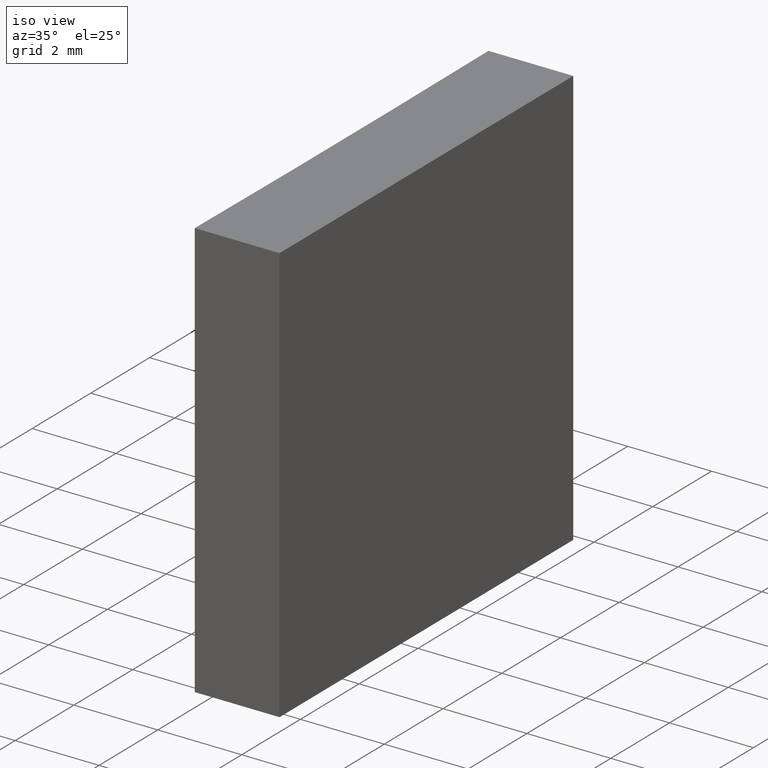
[diagram: clean part render]
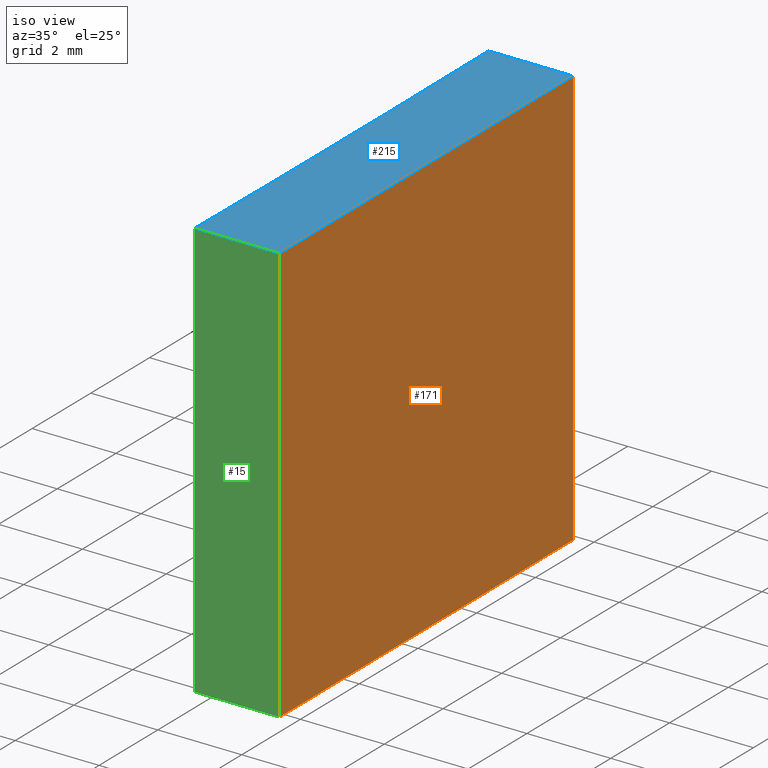
[diagram: same view with three faces highlighted in distinct colors, each labeled with its STEP entity id]
A machine part, iso view with three faces highlighted in distinct colors.
Their STEP definitions:

[orange] entity #171 — the highlighted planar face has unit normal (-1, 0, 0).
#3 = CARTESIAN_POINT ( 'NONE',  ( 433.8743084995878121, -114.5310099826064487, 0.000000000000000000 ) ) ;
#6 = LINE ( 'NONE', #158, #140 ) ;
#20 = LINE ( 'NONE', #77, #131 ) ;
#24 = PLANE ( 'NONE',  #146 ) ;
#31 = ORIENTED_EDGE ( 'NONE', *, *, #124, .F. ) ;
#32 = VECTOR ( 'NONE', #207, 1000.000000000000000 ) ;
#36 = ORIENTED_EDGE ( 'NONE', *, *, #220, .T. ) ;
#47 = CARTESIAN_POINT ( 'NONE',  ( 433.8743084995877553, -124.5310099826064203, 0.000000000000000000 ) ) ;
#57 = VERTEX_POINT ( 'NONE', #3 ) ;
#77 = CARTESIAN_POINT ( 'NONE',  ( 433.8743084995878121, -114.5310099826064487, 10.00000000000000000 ) ) ;
#78 = DIRECTION ( 'NONE',  ( 5.551115123125792957E-15, 1.000000000000000000, -0.000000000000000000 ) ) ;
#98 = EDGE_LOOP ( 'NONE', ( #169, #114, #31, #36 ) ) ;
#100 = DIRECTION ( 'NONE',  ( -5.551115123125792168E-15, -1.000000000000000000, 0.000000000000000000 ) ) ;
#101 = CARTESIAN_POINT ( 'NONE',  ( 433.8743084995878121, -114.5310099826064487, 10.00000000000000000 ) ) ;
#114 = ORIENTED_EDGE ( 'NONE', *, *, #191, .F. ) ;
#121 = DIRECTION ( 'NONE',  ( -1.000000000000000000, 5.551115123125792168E-15, 0.000000000000000000 ) ) ;
#124 = EDGE_CURVE ( 'NONE', #239, #205, #20, .T. ) ;
#126 = CARTESIAN_POINT ( 'NONE',  ( 433.8743084995877553, -124.5310099826064203, 10.00000000000000000 ) ) ;
#131 = VECTOR ( 'NONE', #78, 1000.000000000000000 ) ;
#137 = DIRECTION ( 'NONE',  ( -0.000000000000000000, -0.000000000000000000, -1.000000000000000000 ) ) ;
#139 = FACE_OUTER_BOUND ( 'NONE', #98, .T. ) ;
#140 = VECTOR ( 'NONE', #137, 1000.000000000000000 ) ;
#146 = AXIS2_PLACEMENT_3D ( 'NONE', #101, #121, #100 ) ;
#158 = CARTESIAN_POINT ( 'NONE',  ( 433.8743084995878121, -114.5310099826064487, 10.00000000000000000 ) ) ;
#160 = CARTESIAN_POINT ( 'NONE',  ( 433.8743084995877553, -124.5310099826064203, 10.00000000000000000 ) ) ;
#169 = ORIENTED_EDGE ( 'NONE', *, *, #231, .T. ) ;
#171 = ADVANCED_FACE ( 'NONE', ( #139 ), #24, .F. ) ;
#178 = LINE ( 'NONE', #160, #32 ) ;
#180 = CARTESIAN_POINT ( 'NONE',  ( 433.8743084995878121, -114.5310099826064487, 0.000000000000000000 ) ) ;
#191 = EDGE_CURVE ( 'NONE', #205, #57, #6, .T. ) ;
#199 = VECTOR ( 'NONE', #218, 1000.000000000000000 ) ;
#200 = LINE ( 'NONE', #180, #199 ) ;
#205 = VERTEX_POINT ( 'NONE', #230 ) ;
#207 = DIRECTION ( 'NONE',  ( -0.000000000000000000, -0.000000000000000000, -1.000000000000000000 ) ) ;
#218 = DIRECTION ( 'NONE',  ( 5.551115123125792957E-15, 1.000000000000000000, -0.000000000000000000 ) ) ;
#220 = EDGE_CURVE ( 'NONE', #239, #224, #178, .T. ) ;
#224 = VERTEX_POINT ( 'NONE', #47 ) ;
#230 = CARTESIAN_POINT ( 'NONE',  ( 433.8743084995878121, -114.5310099826064487, 10.00000000000000000 ) ) ;
#231 = EDGE_CURVE ( 'NONE', #224, #57, #200, .T. ) ;
#239 = VERTEX_POINT ( 'NONE', #126 ) ;

[blue] entity #215 — the highlighted planar face has unit normal (0, 0, 1).
#5 = CARTESIAN_POINT ( 'NONE',  ( 431.8543084995877166, -124.5310099826064203, 10.00000000000000000 ) ) ;
#7 = DIRECTION ( 'NONE',  ( 1.000000000000000000, 0.000000000000000000, -0.000000000000000000 ) ) ;
#19 = ORIENTED_EDGE ( 'NONE', *, *, #124, .T. ) ;
#20 = LINE ( 'NONE', #77, #131 ) ;
#22 = CARTESIAN_POINT ( 'NONE',  ( 431.8543084995877166, -114.5310099826064345, 10.00000000000000000 ) ) ;
#23 = DIRECTION ( 'NONE',  ( 0.000000000000000000, 0.000000000000000000, 1.000000000000000000 ) ) ;
#29 = AXIS2_PLACEMENT_3D ( 'NONE', #192, #23, #7 ) ;
#37 = ORIENTED_EDGE ( 'NONE', *, *, #91, .T. ) ;
#38 = DIRECTION ( 'NONE',  ( -1.000000000000000000, 6.870191984066299653E-15, -0.000000000000000000 ) ) ;
#54 = VECTOR ( 'NONE', #38, 1000.000000000000000 ) ;
#62 = EDGE_CURVE ( 'NONE', #74, #116, #120, .T. ) ;
#74 = VERTEX_POINT ( 'NONE', #22 ) ;
#77 = CARTESIAN_POINT ( 'NONE',  ( 433.8743084995878121, -114.5310099826064487, 10.00000000000000000 ) ) ;
#78 = DIRECTION ( 'NONE',  ( 5.551115123125792957E-15, 1.000000000000000000, -0.000000000000000000 ) ) ;
#80 = DIRECTION ( 'NONE',  ( 1.000000000000000000, 0.000000000000000000, 0.000000000000000000 ) ) ;
#91 = EDGE_CURVE ( 'NONE', #205, #74, #117, .T. ) ;
#96 = VECTOR ( 'NONE', #102, 1000.000000000000000 ) ;
#102 = DIRECTION ( 'NONE',  ( 1.000000000000000000, 0.000000000000000000, 0.000000000000000000 ) ) ;
#116 = VERTEX_POINT ( 'NONE', #5 ) ;
#117 = LINE ( 'NONE', #213, #54 ) ;
#120 = CIRCLE ( 'NONE', #234, 516.8000000000000682 ) ;
#122 = FACE_OUTER_BOUND ( 'NONE', #203, .T. ) ;
#124 = EDGE_CURVE ( 'NONE', #239, #205, #20, .T. ) ;
#126 = CARTESIAN_POINT ( 'NONE',  ( 433.8743084995877553, -124.5310099826064203, 10.00000000000000000 ) ) ;
#131 = VECTOR ( 'NONE', #78, 1000.000000000000000 ) ;
#153 = ORIENTED_EDGE ( 'NONE', *, *, #62, .T. ) ;
#156 = DIRECTION ( 'NONE',  ( -0.000000000000000000, -0.000000000000000000, -1.000000000000000000 ) ) ;
#159 = PLANE ( 'NONE',  #29 ) ;
#172 = CARTESIAN_POINT ( 'NONE',  ( -84.92150362787631934, -119.5310099826064345, 10.00000000000000000 ) ) ;
#175 = CARTESIAN_POINT ( 'NONE',  ( 431.8543084995877166, -124.5310099826064203, 10.00000000000000000 ) ) ;
#176 = EDGE_CURVE ( 'NONE', #116, #239, #177, .T. ) ;
#177 = LINE ( 'NONE', #175, #96 ) ;
#192 = CARTESIAN_POINT ( 'NONE',  ( -84.92150362787631934, -119.5310099826064345, 10.00000000000000000 ) ) ;
#203 = EDGE_LOOP ( 'NONE', ( #153, #204, #19, #37 ) ) ;
#204 = ORIENTED_EDGE ( 'NONE', *, *, #176, .T. ) ;
#205 = VERTEX_POINT ( 'NONE', #230 ) ;
#213 = CARTESIAN_POINT ( 'NONE',  ( 431.8543084995877166, -114.5310099826064345, 10.00000000000000000 ) ) ;
#215 = ADVANCED_FACE ( 'NONE', ( #122 ), #159, .T. ) ;
#230 = CARTESIAN_POINT ( 'NONE',  ( 433.8743084995878121, -114.5310099826064487, 10.00000000000000000 ) ) ;
#234 = AXIS2_PLACEMENT_3D ( 'NONE', #172, #156, #80 ) ;
#239 = VERTEX_POINT ( 'NONE', #126 ) ;

[green] entity #15 — the highlighted planar face has unit normal (0, 1, 0).
#1 = ORIENTED_EDGE ( 'NONE', *, *, #107, .T. ) ;
#5 = CARTESIAN_POINT ( 'NONE',  ( 431.8543084995877166, -124.5310099826064203, 10.00000000000000000 ) ) ;
#15 = ADVANCED_FACE ( 'NONE', ( #76 ), #154, .F. ) ;
#18 = ORIENTED_EDGE ( 'NONE', *, *, #176, .F. ) ;
#32 = VECTOR ( 'NONE', #207, 1000.000000000000000 ) ;
#34 = EDGE_CURVE ( 'NONE', #116, #55, #138, .T. ) ;
#35 = ORIENTED_EDGE ( 'NONE', *, *, #220, .F. ) ;
#42 = AXIS2_PLACEMENT_3D ( 'NONE', #225, #227, #79 ) ;
#47 = CARTESIAN_POINT ( 'NONE',  ( 433.8743084995877553, -124.5310099826064203, 0.000000000000000000 ) ) ;
#49 = VECTOR ( 'NONE', #174, 1000.000000000000000 ) ;
#55 = VERTEX_POINT ( 'NONE', #211 ) ;
#63 = CARTESIAN_POINT ( 'NONE',  ( 431.8543084995877166, -124.5310099826064203, 10.00000000000000000 ) ) ;
#72 = EDGE_LOOP ( 'NONE', ( #1, #35, #18, #167 ) ) ;
#76 = FACE_OUTER_BOUND ( 'NONE', #72, .T. ) ;
#79 = DIRECTION ( 'NONE',  ( 0.000000000000000000, -0.000000000000000000, 1.000000000000000000 ) ) ;
#96 = VECTOR ( 'NONE', #102, 1000.000000000000000 ) ;
#102 = DIRECTION ( 'NONE',  ( 1.000000000000000000, 0.000000000000000000, 0.000000000000000000 ) ) ;
#107 = EDGE_CURVE ( 'NONE', #55, #224, #190, .T. ) ;
#108 = VECTOR ( 'NONE', #188, 1000.000000000000000 ) ;
#116 = VERTEX_POINT ( 'NONE', #5 ) ;
#126 = CARTESIAN_POINT ( 'NONE',  ( 433.8743084995877553, -124.5310099826064203, 10.00000000000000000 ) ) ;
#138 = LINE ( 'NONE', #63, #49 ) ;
#154 = PLANE ( 'NONE',  #42 ) ;
#160 = CARTESIAN_POINT ( 'NONE',  ( 433.8743084995877553, -124.5310099826064203, 10.00000000000000000 ) ) ;
#167 = ORIENTED_EDGE ( 'NONE', *, *, #34, .T. ) ;
#174 = DIRECTION ( 'NONE',  ( -0.000000000000000000, -0.000000000000000000, -1.000000000000000000 ) ) ;
#175 = CARTESIAN_POINT ( 'NONE',  ( 431.8543084995877166, -124.5310099826064203, 10.00000000000000000 ) ) ;
#176 = EDGE_CURVE ( 'NONE', #116, #239, #177, .T. ) ;
#177 = LINE ( 'NONE', #175, #96 ) ;
#178 = LINE ( 'NONE', #160, #32 ) ;
#188 = DIRECTION ( 'NONE',  ( 1.000000000000000000, 0.000000000000000000, 0.000000000000000000 ) ) ;
#190 = LINE ( 'NONE', #208, #108 ) ;
#207 = DIRECTION ( 'NONE',  ( -0.000000000000000000, -0.000000000000000000, -1.000000000000000000 ) ) ;
#208 = CARTESIAN_POINT ( 'NONE',  ( 431.8543084995877166, -124.5310099826064203, 0.000000000000000000 ) ) ;
#211 = CARTESIAN_POINT ( 'NONE',  ( 431.8543084995877166, -124.5310099826064203, 0.000000000000000000 ) ) ;
#220 = EDGE_CURVE ( 'NONE', #239, #224, #178, .T. ) ;
#224 = VERTEX_POINT ( 'NONE', #47 ) ;
#225 = CARTESIAN_POINT ( 'NONE',  ( 431.8543084995877166, -124.5310099826064203, 10.00000000000000000 ) ) ;
#227 = DIRECTION ( 'NONE',  ( 0.000000000000000000, 1.000000000000000000, 0.000000000000000000 ) ) ;
#239 = VERTEX_POINT ( 'NONE', #126 ) ;